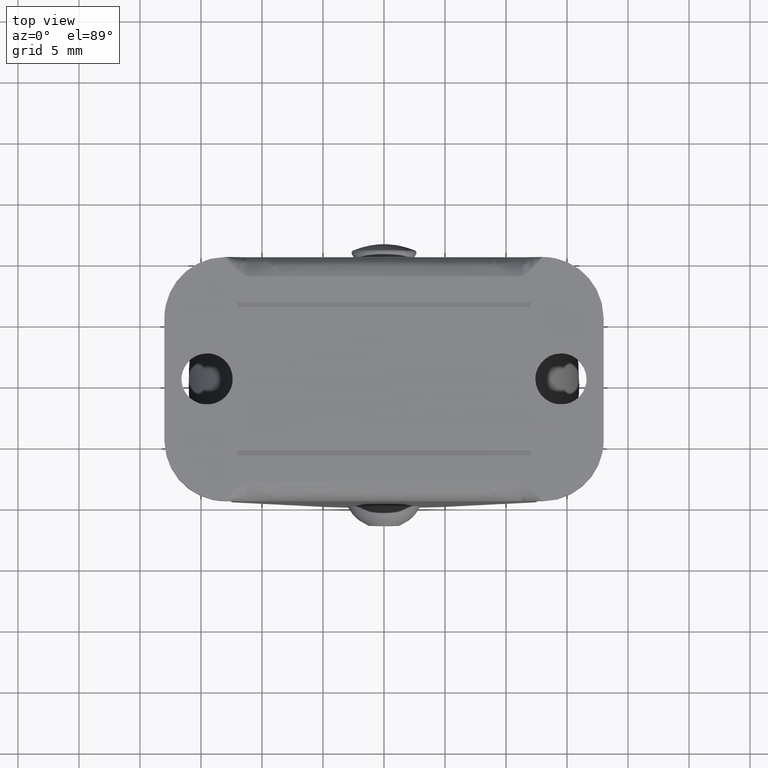
[diagram: clean part render]
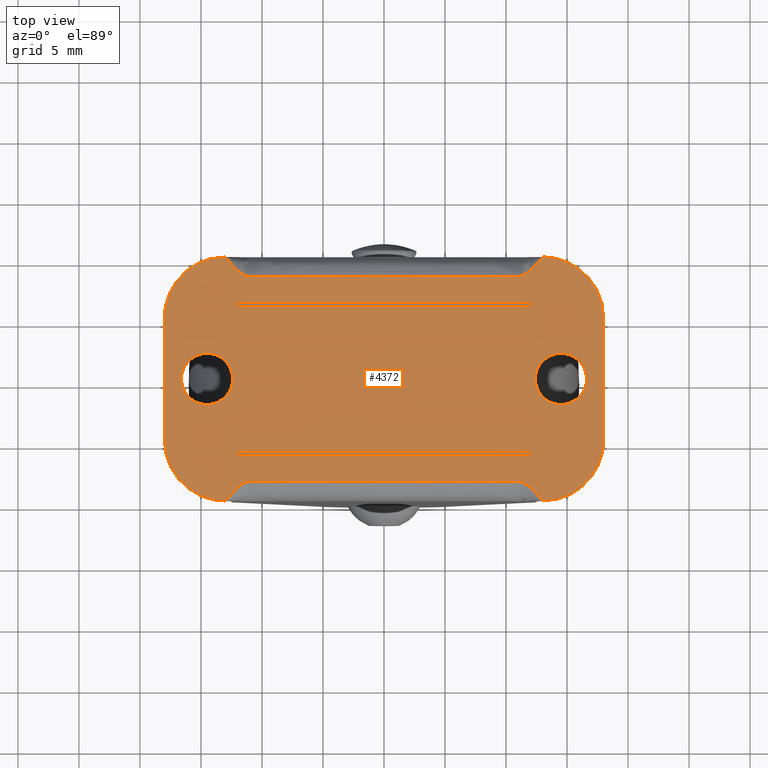
[diagram: same view with one face highlighted and labeled with its STEP entity id]
A machine part, top view. The second image highlights one B-rep face of the part: STEP entity #4372.
In plain terms, the highlighted face is a freeform B-spline surface patch.
Its self-contained STEP definition (entity closure, byte-faithful):
#2825=CARTESIAN_POINT('',(-14.747868190217091,-2.085320445462663,26.000000000000181));
#2826=VERTEX_POINT('',#2825);
#2827=CARTESIAN_POINT('',(-12.400000000000000,0.0,26.0));
#2828=VERTEX_POINT('',#2827);
#2829=CARTESIAN_POINT('',(-14.747868190217089,-2.085320445462662,26.000000000000178));
#2830=CARTESIAN_POINT('',(-14.624368780416944,-2.100000000000001,26.0));
#2831=CARTESIAN_POINT('',(-14.500000000000000,-2.100000000000000,26.0));
#2832=CARTESIAN_POINT('',(-12.400000000000002,-2.100000000000000,26.000000000000004));
#2833=CARTESIAN_POINT('',(-12.400000000000000,0.0,26.0));
#2841=(BOUNDED_CURVE()B_SPLINE_CURVE(2,(#2829,#2830,#2831,#2832,#2833),.UNSPECIFIED.,.F.,.U.)B_SPLINE_CURVE_WITH_KNOTS((3,2,3),(0.229562773587139,0.250000000000000,0.500000000000000),.UNSPECIFIED.)CURVE()GEOMETRIC_REPRESENTATION_ITEM()RATIONAL_B_SPLINE_CURVE((0.956027342341139,0.976056299889271,1.0,0.707106781186548,1.0))REPRESENTATION_ITEM(''));
#2842=EDGE_CURVE('',#2826,#2828,#2841,.T.);
#2844=CARTESIAN_POINT('',(-14.371798066874691,2.096083076679675,26.0));
#2845=VERTEX_POINT('',#2844);
#2846=CARTESIAN_POINT('',(-12.400000000000000,0.0,26.0));
#2847=CARTESIAN_POINT('',(-12.400000000000004,1.975482740309117,25.999999999999996));
#2848=CARTESIAN_POINT('',(-14.371798066874687,2.096083076679675,26.0));
#2856=(BOUNDED_CURVE()B_SPLINE_CURVE(2,(#2846,#2847,#2848),.UNSPECIFIED.,.F.,.U.)B_SPLINE_CURVE_WITH_KNOTS((3,3),(0.500000000000000,0.739332962225156),.UNSPECIFIED.)CURVE()GEOMETRIC_REPRESENTATION_ITEM()RATIONAL_B_SPLINE_CURVE((1.0,0.719603993302862,0.976072041637170))REPRESENTATION_ITEM(''));
#2857=EDGE_CURVE('',#2828,#2845,#2856,.T.);
#2928=CARTESIAN_POINT('',(-16.600000000000001,0.0,26.0));
#2929=VERTEX_POINT('',#2928);
#2930=CARTESIAN_POINT('',(-16.600000000000001,0.0,26.0));
#2931=CARTESIAN_POINT('',(-16.600000000000005,-1.865169839484413,26.0));
#2932=CARTESIAN_POINT('',(-14.747868190217089,-2.085320445462662,26.000000000000178));
#2940=(BOUNDED_CURVE()B_SPLINE_CURVE(2,(#2930,#2931,#2932),.UNSPECIFIED.,.F.,.U.)B_SPLINE_CURVE_WITH_KNOTS((3,3),(0.0,0.229562773587139),.UNSPECIFIED.)CURVE()GEOMETRIC_REPRESENTATION_ITEM()RATIONAL_B_SPLINE_CURVE((1.0,0.731050481297277,0.956027342341139))REPRESENTATION_ITEM(''));
#2941=EDGE_CURVE('',#2929,#2826,#2940,.T.);
#2975=CARTESIAN_POINT('',(-14.371798066874685,2.096083076679675,25.999999999999996));
#2976=CARTESIAN_POINT('',(-14.435839196970560,2.100000000000000,25.999999999999993));
#2977=CARTESIAN_POINT('',(-14.500000000000000,2.100000000000000,26.0));
#2978=CARTESIAN_POINT('',(-16.600000000000001,2.100000000000000,26.000000000000004));
#2979=CARTESIAN_POINT('',(-16.600000000000001,0.0,26.0));
#2987=(BOUNDED_CURVE()B_SPLINE_CURVE(2,(#2975,#2976,#2977,#2978,#2979),.UNSPECIFIED.,.F.,.U.)B_SPLINE_CURVE_WITH_KNOTS((3,2,3),(0.739332962225156,0.750000000000000,1.0),.UNSPECIFIED.)CURVE()GEOMETRIC_REPRESENTATION_ITEM()RATIONAL_B_SPLINE_CURVE((0.976072041637170,0.987502787883685,1.0,0.707106781186548,1.0))REPRESENTATION_ITEM(''));
#2988=EDGE_CURVE('',#2845,#2929,#2987,.T.);
#3015=CARTESIAN_POINT('',(14.252131809782909,-2.085320445462663,26.000000000000181));
#3016=VERTEX_POINT('',#3015);
#3017=CARTESIAN_POINT('',(16.600000000000001,0.0,26.0));
#3018=VERTEX_POINT('',#3017);
#3019=CARTESIAN_POINT('',(14.252131809782917,-2.085320445462663,26.000000000000181));
#3020=CARTESIAN_POINT('',(14.375631219583054,-2.100000000000001,26.000000000000004));
#3021=CARTESIAN_POINT('',(14.500000000000000,-2.100000000000000,26.0));
#3022=CARTESIAN_POINT('',(16.600000000000001,-2.100000000000000,26.000000000000004));
#3023=CARTESIAN_POINT('',(16.600000000000001,0.0,26.0));
#3031=(BOUNDED_CURVE()B_SPLINE_CURVE(2,(#3019,#3020,#3021,#3022,#3023),.UNSPECIFIED.,.F.,.U.)B_SPLINE_CURVE_WITH_KNOTS((3,2,3),(0.229562773587138,0.250000000000000,0.500000000000000),.UNSPECIFIED.)CURVE()GEOMETRIC_REPRESENTATION_ITEM()RATIONAL_B_SPLINE_CURVE((0.956027342341138,0.976056299889271,1.0,0.707106781186548,1.0))REPRESENTATION_ITEM(''));
#3032=EDGE_CURVE('',#3016,#3018,#3031,.T.);
#3034=CARTESIAN_POINT('',(14.628201933125320,2.096083076679675,26.0));
#3035=VERTEX_POINT('',#3034);
#3036=CARTESIAN_POINT('',(16.600000000000001,0.0,26.0));
#3037=CARTESIAN_POINT('',(16.600000000000005,1.975482740309117,25.999999999999996));
#3038=CARTESIAN_POINT('',(14.628201933125313,2.096083076679675,26.0));
#3046=(BOUNDED_CURVE()B_SPLINE_CURVE(2,(#3036,#3037,#3038),.UNSPECIFIED.,.F.,.U.)B_SPLINE_CURVE_WITH_KNOTS((3,3),(0.500000000000000,0.739332962225156),.UNSPECIFIED.)CURVE()GEOMETRIC_REPRESENTATION_ITEM()RATIONAL_B_SPLINE_CURVE((1.0,0.719603993302862,0.976072041637170))REPRESENTATION_ITEM(''));
#3047=EDGE_CURVE('',#3018,#3035,#3046,.T.);
#3118=CARTESIAN_POINT('',(12.400000000000000,0.0,26.0));
#3119=VERTEX_POINT('',#3118);
#3120=CARTESIAN_POINT('',(12.400000000000000,0.0,26.0));
#3121=CARTESIAN_POINT('',(12.400000000000002,-1.865169839484413,26.0));
#3122=CARTESIAN_POINT('',(14.252131809782915,-2.085320445462662,26.000000000000178));
#3130=(BOUNDED_CURVE()B_SPLINE_CURVE(2,(#3120,#3121,#3122),.UNSPECIFIED.,.F.,.U.)B_SPLINE_CURVE_WITH_KNOTS((3,3),(0.0,0.229562773587139),.UNSPECIFIED.)CURVE()GEOMETRIC_REPRESENTATION_ITEM()RATIONAL_B_SPLINE_CURVE((1.0,0.731050481297277,0.956027342341139))REPRESENTATION_ITEM(''));
#3131=EDGE_CURVE('',#3119,#3016,#3130,.T.);
#3165=CARTESIAN_POINT('',(14.628201933125315,2.096083076679675,26.000000000000007));
#3166=CARTESIAN_POINT('',(14.564160803029443,2.100000000000000,26.0));
#3167=CARTESIAN_POINT('',(14.500000000000000,2.100000000000000,26.0));
#3168=CARTESIAN_POINT('',(12.400000000000002,2.100000000000000,26.000000000000004));
#3169=CARTESIAN_POINT('',(12.400000000000000,0.0,26.0));
#3177=(BOUNDED_CURVE()B_SPLINE_CURVE(2,(#3165,#3166,#3167,#3168,#3169),.UNSPECIFIED.,.F.,.U.)B_SPLINE_CURVE_WITH_KNOTS((3,2,3),(0.739332962225156,0.750000000000000,1.0),.UNSPECIFIED.)CURVE()GEOMETRIC_REPRESENTATION_ITEM()RATIONAL_B_SPLINE_CURVE((0.976072041637170,0.987502787883685,1.0,0.707106781186548,1.0))REPRESENTATION_ITEM(''));
#3178=EDGE_CURVE('',#3035,#3119,#3177,.T.);
#3221=CARTESIAN_POINT('',(-13.000002617993880,-9.999999999999400,26.0));
#3222=VERTEX_POINT('',#3221);
#3223=CARTESIAN_POINT('',(13.0,-10.0,26.0));
#3224=VERTEX_POINT('',#3223);
#3225=CARTESIAN_POINT('',(-13.000002617993880,-9.999999999999400,26.0));
#3226=CARTESIAN_POINT('',(-12.333335951327220,-9.199999999999999,26.0));
#3227=CARTESIAN_POINT('',(-11.666669284660539,-8.400000000000000,26.0));
#3228=CARTESIAN_POINT('',(-11.000002617993900,-8.400000000000000,26.0));
#3229=CARTESIAN_POINT('',(-3.666669284660545,-8.400000000000000,26.0));
#3230=CARTESIAN_POINT('',(3.666664048672790,-8.400000000000000,26.0));
#3231=CARTESIAN_POINT('',(10.999997382006120,-8.400000000000000,26.0));
#3232=CARTESIAN_POINT('',(11.666664921337420,-8.400000000000000,26.0));
#3233=CARTESIAN_POINT('',(12.333332460668700,-9.199999999999999,26.0));
#3234=CARTESIAN_POINT('',(13.0,-10.0,26.0));
#3235=B_SPLINE_CURVE_WITH_KNOTS('',3,(#3225,#3226,#3227,#3228,#3229,#3230,#3231,#3232,#3233,#3234),.UNSPECIFIED.,.F.,.U.,(4,3,3,4),(0.0,0.076923069177534,0.923076830130404,1.0),.UNSPECIFIED.);
#3236=EDGE_CURVE('',#3222,#3224,#3235,.T.);
#3292=CARTESIAN_POINT('',(13.000001570796320,9.999999999999670,26.0));
#3293=VERTEX_POINT('',#3292);
#3294=CARTESIAN_POINT('',(-13.0,10.0,26.0));
#3295=VERTEX_POINT('',#3294);
#3296=CARTESIAN_POINT('',(13.000001570796320,9.999999999999670,26.0));
#3297=CARTESIAN_POINT('',(12.333334904129661,9.199999999999999,26.0));
#3298=CARTESIAN_POINT('',(11.666668237463000,8.399999999999912,26.0));
#3299=CARTESIAN_POINT('',(11.000001570796320,8.399999999999912,26.0));
#3300=CARTESIAN_POINT('',(3.666668237462995,8.399999999999912,26.0));
#3301=CARTESIAN_POINT('',(-3.666665095870335,8.399999999999912,26.0));
#3302=CARTESIAN_POINT('',(-10.999998429203661,8.399999999999912,26.0));
#3303=CARTESIAN_POINT('',(-11.666665619469100,8.399999999999912,26.0));
#3304=CARTESIAN_POINT('',(-12.333332809734561,9.199999999999999,26.0));
#3305=CARTESIAN_POINT('',(-13.0,10.0,26.0));
#3306=B_SPLINE_CURVE_WITH_KNOTS('',3,(#3296,#3297,#3298,#3299,#3300,#3301,#3302,#3303,#3304,#3305),.UNSPECIFIED.,.F.,.U.,(4,3,3,4),(0.0,0.076923072275751,0.923076867309009,1.0),.UNSPECIFIED.);
#3307=EDGE_CURVE('',#3293,#3295,#3306,.T.);
#3680=CARTESIAN_POINT('',(12.0,6.299998999999820,26.0));
#3681=VERTEX_POINT('',#3680);
#3682=CARTESIAN_POINT('',(-12.0,6.299998999999820,26.0));
#3683=VERTEX_POINT('',#3682);
#3684=CARTESIAN_POINT('',(12.0,6.299998999999820,26.0));
#3685=CARTESIAN_POINT('',(-12.0,6.299998999999820,26.0));
#3686=QUASI_UNIFORM_CURVE('',1,(#3684,#3685),.UNSPECIFIED.,.F.,.U.);
#3687=EDGE_CURVE('',#3681,#3683,#3686,.T.);
#3708=CARTESIAN_POINT('',(12.0,5.900002000000000,26.0));
#3709=VERTEX_POINT('',#3708);
#3710=CARTESIAN_POINT('',(12.0,5.900002000000000,26.0));
#3711=CARTESIAN_POINT('',(12.0,6.299998999999820,26.0));
#3712=QUASI_UNIFORM_CURVE('',1,(#3710,#3711),.UNSPECIFIED.,.F.,.U.);
#3713=EDGE_CURVE('',#3709,#3681,#3712,.T.);
#3730=CARTESIAN_POINT('',(-12.0,5.900002000000000,26.0));
#3731=VERTEX_POINT('',#3730);
#3732=CARTESIAN_POINT('',(-12.0,5.900002000000000,26.0));
#3733=CARTESIAN_POINT('',(12.0,5.900002000000000,26.0));
#3734=QUASI_UNIFORM_CURVE('',1,(#3732,#3733),.UNSPECIFIED.,.F.,.U.);
#3735=EDGE_CURVE('',#3731,#3709,#3734,.T.);
#3752=CARTESIAN_POINT('',(-12.0,6.299998999999820,26.0));
#3753=CARTESIAN_POINT('',(-12.0,5.900002000000000,26.0));
#3754=QUASI_UNIFORM_CURVE('',1,(#3752,#3753),.UNSPECIFIED.,.F.,.U.);
#3755=EDGE_CURVE('',#3683,#3731,#3754,.T.);
#3804=CARTESIAN_POINT('',(-12.0,-6.299999000000180,26.0));
#3805=VERTEX_POINT('',#3804);
#3806=CARTESIAN_POINT('',(12.0,-6.299999000000180,26.0));
#3807=VERTEX_POINT('',#3806);
#3808=CARTESIAN_POINT('',(-12.0,-6.299999000000180,26.0));
#3809=CARTESIAN_POINT('',(12.0,-6.299999000000180,26.0));
#3810=QUASI_UNIFORM_CURVE('',1,(#3808,#3809),.UNSPECIFIED.,.F.,.U.);
#3811=EDGE_CURVE('',#3805,#3807,#3810,.T.);
#3832=CARTESIAN_POINT('',(-12.0,-5.900002000000000,26.0));
#3833=VERTEX_POINT('',#3832);
#3834=CARTESIAN_POINT('',(-12.0,-5.900002000000000,26.0));
#3835=CARTESIAN_POINT('',(-12.0,-6.299999000000180,26.0));
#3836=QUASI_UNIFORM_CURVE('',1,(#3834,#3835),.UNSPECIFIED.,.F.,.U.);
#3837=EDGE_CURVE('',#3833,#3805,#3836,.T.);
#3854=CARTESIAN_POINT('',(12.0,-5.900002000000000,26.0));
#3855=VERTEX_POINT('',#3854);
#3856=CARTESIAN_POINT('',(12.0,-5.900002000000000,26.0));
#3857=CARTESIAN_POINT('',(-12.0,-5.900002000000000,26.0));
#3858=QUASI_UNIFORM_CURVE('',1,(#3856,#3857),.UNSPECIFIED.,.F.,.U.);
#3859=EDGE_CURVE('',#3855,#3833,#3858,.T.);
#3876=CARTESIAN_POINT('',(12.0,-6.299999000000180,26.0));
#3877=CARTESIAN_POINT('',(12.0,-5.900002000000000,26.0));
#3878=QUASI_UNIFORM_CURVE('',1,(#3876,#3877),.UNSPECIFIED.,.F.,.U.);
#3879=EDGE_CURVE('',#3807,#3855,#3878,.T.);
#4269=CARTESIAN_POINT('',(-19.798199930225010,10.998999961236120,26.0));
#4270=CARTESIAN_POINT('',(19.798200895820258,10.998999961236120,26.0));
#4271=CARTESIAN_POINT('',(-19.798199930225010,-10.999000497677921,26.0));
#4272=CARTESIAN_POINT('',(19.798200895820258,-10.999000497677921,26.0));
#4273=B_SPLINE_SURFACE_WITH_KNOTS('',1,1,((#4269,#4271),(#4270,#4272)),.UNSPECIFIED.,.F.,.F.,.U.,(2,2),(2,2),(0.0,39.596400826045269),(0.0,21.998000458914039),.UNSPECIFIED.);
#4274=CARTESIAN_POINT('',(-18.0,-5.000000000000091,26.0));
#4275=VERTEX_POINT('',#4274);
#4276=CARTESIAN_POINT('',(-18.0,-5.000000000000091,26.0));
#4277=CARTESIAN_POINT('',(-18.000000000000004,-9.999997382006894,25.999999999999993));
#4278=CARTESIAN_POINT('',(-13.000002617993880,-9.999999999999405,26.0));
#4286=(BOUNDED_CURVE()B_SPLINE_CURVE(2,(#4276,#4277,#4278),.UNSPECIFIED.,.F.,.U.)CURVE()GEOMETRIC_REPRESENTATION_ITEM()QUASI_UNIFORM_CURVE()RATIONAL_B_SPLINE_CURVE((1.0,0.707106966306646,1.0))REPRESENTATION_ITEM(''));
#4287=EDGE_CURVE('',#4275,#3222,#4286,.T.);
#4288=ORIENTED_EDGE('',*,*,#4287,.T.);
#4289=ORIENTED_EDGE('',*,*,#3236,.T.);
#4290=CARTESIAN_POINT('',(17.999999999998099,-5.000004363323220,26.0));
#4291=VERTEX_POINT('',#4290);
#4292=CARTESIAN_POINT('',(13.0,-10.0,26.0));
#4293=CARTESIAN_POINT('',(17.999995636678769,-10.000000000000091,26.000000000000007));
#4294=CARTESIAN_POINT('',(17.999999999998089,-5.000004363323220,26.0));
#4302=(BOUNDED_CURVE()B_SPLINE_CURVE(2,(#4292,#4293,#4294),.UNSPECIFIED.,.F.,.U.)CURVE()GEOMETRIC_REPRESENTATION_ITEM()QUASI_UNIFORM_CURVE()RATIONAL_B_SPLINE_CURVE((1.0,0.707107089720018,1.0))REPRESENTATION_ITEM(''));
#4303=EDGE_CURVE('',#3224,#4291,#4302,.T.);
#4304=ORIENTED_EDGE('',*,*,#4303,.T.);
#4305=CARTESIAN_POINT('',(18.0,4.999999999999920,26.0));
#4306=VERTEX_POINT('',#4305);
#4307=CARTESIAN_POINT('',(17.999999999998099,-5.000004363323220,26.0));
#4308=CARTESIAN_POINT('',(18.0,4.999999999999920,26.0));
#4309=QUASI_UNIFORM_CURVE('',1,(#4307,#4308),.UNSPECIFIED.,.F.,.U.);
#4310=EDGE_CURVE('',#4291,#4306,#4309,.T.);
#4311=ORIENTED_EDGE('',*,*,#4310,.T.);
#4312=CARTESIAN_POINT('',(18.0,4.999999999999920,26.0));
#4313=CARTESIAN_POINT('',(17.999999999999993,9.999998429203847,26.0));
#4314=CARTESIAN_POINT('',(13.000001570796320,9.999999999999675,26.0));
#4322=(BOUNDED_CURVE()B_SPLINE_CURVE(2,(#4312,#4313,#4314),.UNSPECIFIED.,.F.,.U.)CURVE()GEOMETRIC_REPRESENTATION_ITEM()QUASI_UNIFORM_CURVE()RATIONAL_B_SPLINE_CURVE((1.0,0.707106892258612,1.0))REPRESENTATION_ITEM(''));
#4323=EDGE_CURVE('',#4306,#3293,#4322,.T.);
#4324=ORIENTED_EDGE('',*,*,#4323,.T.);
#4325=ORIENTED_EDGE('',*,*,#3307,.T.);
#4326=CARTESIAN_POINT('',(-18.0,4.999999999999920,26.0));
#4327=VERTEX_POINT('',#4326);
#4328=CARTESIAN_POINT('',(-13.0,10.0,26.0));
#4329=CARTESIAN_POINT('',(-18.000000000000007,9.999999999999922,26.000000000000004));
#4330=CARTESIAN_POINT('',(-18.0,4.999999999999920,26.0));
#4338=(BOUNDED_CURVE()B_SPLINE_CURVE(2,(#4328,#4329,#4330),.UNSPECIFIED.,.F.,.U.)CURVE()GEOMETRIC_REPRESENTATION_ITEM()QUASI_UNIFORM_CURVE()RATIONAL_B_SPLINE_CURVE((1.0,0.707106781186548,1.0))REPRESENTATION_ITEM(''));
#4339=EDGE_CURVE('',#3295,#4327,#4338,.T.);
#4340=ORIENTED_EDGE('',*,*,#4339,.T.);
#4341=CARTESIAN_POINT('',(-18.0,4.999999999999920,26.0));
#4342=CARTESIAN_POINT('',(-18.0,-5.000000000000091,26.0));
#4343=QUASI_UNIFORM_CURVE('',1,(#4341,#4342),.UNSPECIFIED.,.F.,.U.);
#4344=EDGE_CURVE('',#4327,#4275,#4343,.T.);
#4345=ORIENTED_EDGE('',*,*,#4344,.T.);
#4346=EDGE_LOOP('',(#4288,#4289,#4304,#4311,#4324,#4325,#4340,#4345));
#4347=FACE_OUTER_BOUND('',#4346,.T.);
#4348=ORIENTED_EDGE('',*,*,#3879,.F.);
#4349=ORIENTED_EDGE('',*,*,#3811,.F.);
#4350=ORIENTED_EDGE('',*,*,#3837,.F.);
#4351=ORIENTED_EDGE('',*,*,#3859,.F.);
#4352=EDGE_LOOP('',(#4348,#4349,#4350,#4351));
#4353=FACE_BOUND('',#4352,.T.);
#4354=ORIENTED_EDGE('',*,*,#3755,.F.);
#4355=ORIENTED_EDGE('',*,*,#3687,.F.);
#4356=ORIENTED_EDGE('',*,*,#3713,.F.);
#4357=ORIENTED_EDGE('',*,*,#3735,.F.);
#4358=EDGE_LOOP('',(#4354,#4355,#4356,#4357));
#4359=FACE_BOUND('',#4358,.T.);
#4360=ORIENTED_EDGE('',*,*,#3047,.F.);
#4361=ORIENTED_EDGE('',*,*,#3032,.F.);
#4362=ORIENTED_EDGE('',*,*,#3131,.F.);
#4363=ORIENTED_EDGE('',*,*,#3178,.F.);
#4364=EDGE_LOOP('',(#4360,#4361,#4362,#4363));
#4365=FACE_BOUND('',#4364,.T.);
#4366=ORIENTED_EDGE('',*,*,#2857,.F.);
#4367=ORIENTED_EDGE('',*,*,#2842,.F.);
#4368=ORIENTED_EDGE('',*,*,#2941,.F.);
#4369=ORIENTED_EDGE('',*,*,#2988,.F.);
#4370=EDGE_LOOP('',(#4366,#4367,#4368,#4369));
#4371=FACE_BOUND('',#4370,.T.);
#4372=ADVANCED_FACE('',(#4347,#4353,#4359,#4365,#4371),#4273,.F.);